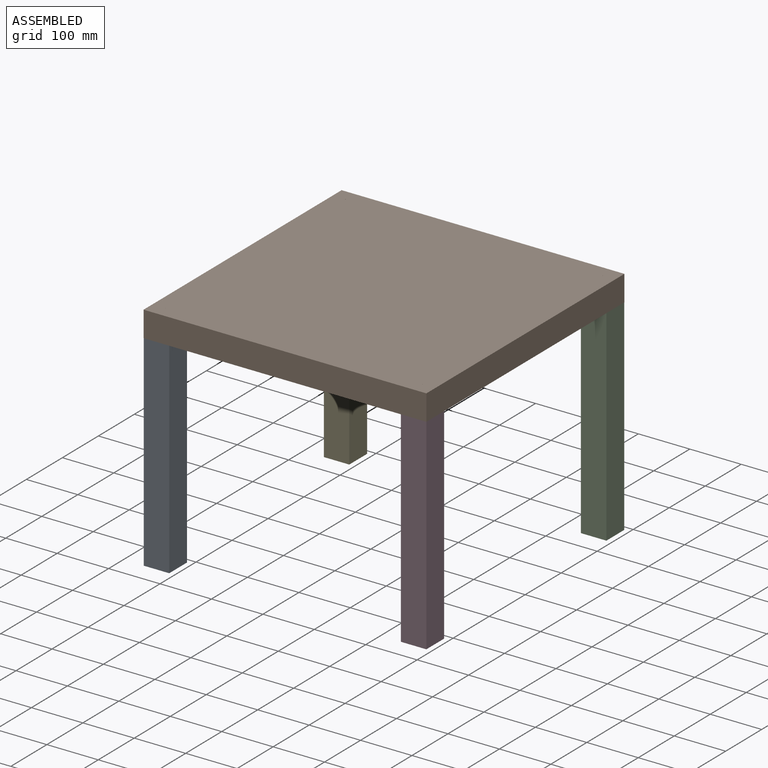
[diagram: assembled view]
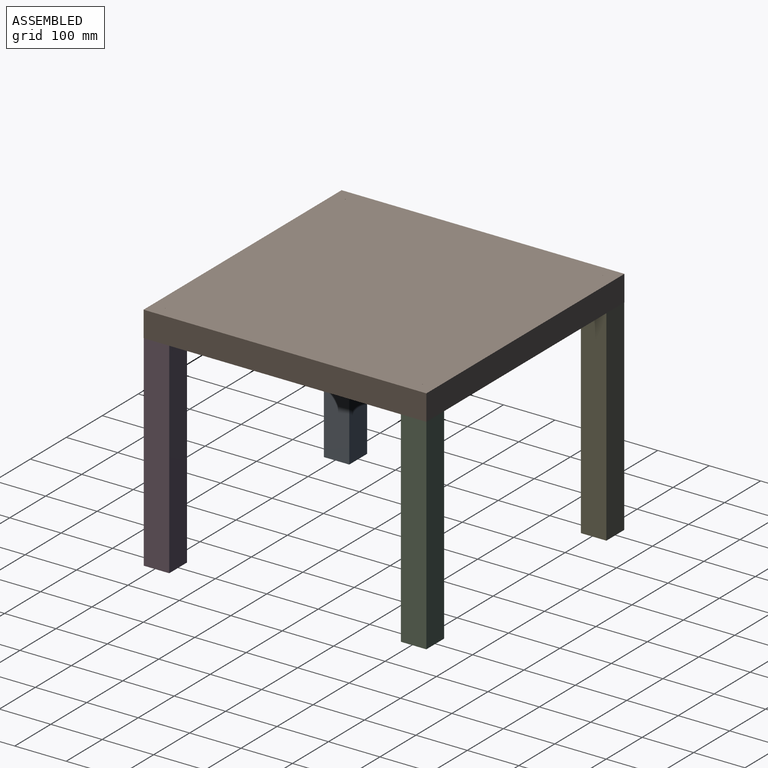
[diagram: assembled view, second angle]
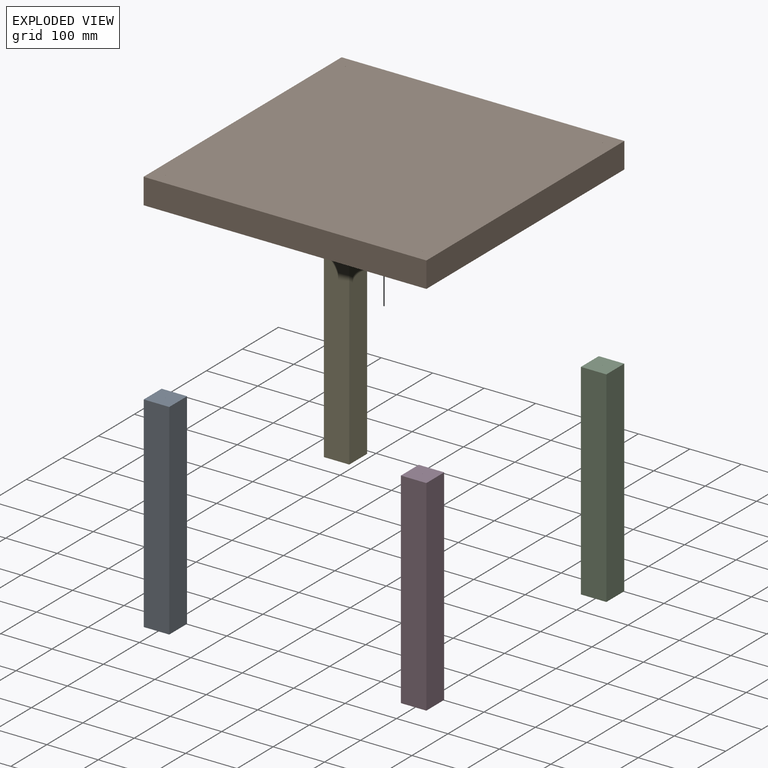
[diagram: exploded view]
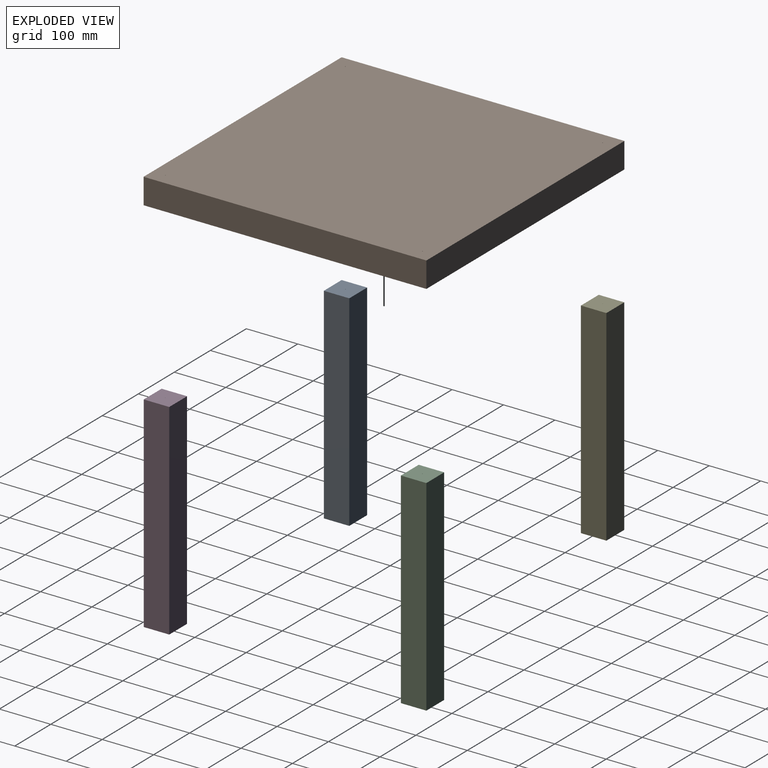
[diagram: exploded view, second angle]
ASSEMBLY  parts=5 mates=4
PART A: 7 faces, bbox 49.5x49.5x400 mm
  f0: plane 400x49.5mm, normal (0,1,0), area 19800mm2, adj f1,f4,f5,f6
  f1: plane 400x49.5mm, normal (-1,0,0), area 19800mm2, adj f0,f2,f5,f6
  f2: plane 400x49.5mm, normal (0,-1,0), area 19800mm2, adj f1,f4,f5,f6
  f3: cylinder r=0.5mm len=400mm, axis (0,0,-1), area 1256.6mm2, adj f5,f6
  f4: plane 400x49.5mm, normal (1,0,0), area 19800mm2, adj f0,f2,f5,f6
  f5: plane 49.5x49.5mm, normal (0,0,1), area 2449.5mm2, adj f0,f1,f2,f3,f4
  f6: plane 49.5x49.5mm, normal (0,0,-1), area 2449.5mm2, adj f0,f1,f2,f3,f4
PART B: 10 faces, bbox 550x550x50 mm
  f0: plane 550x50mm, normal (0,1,0), area 27500mm2, adj f1,f7,f8,f9
  f1: plane 550x50mm, normal (-1,0,0), area 27500mm2, adj f0,f2,f8,f9
  f2: plane 550x50mm, normal (0,-1,0), area 27500mm2, adj f1,f7,f8,f9
  f3: cylinder r=0.5mm len=50mm, axis (0,0,-1), area 157.1mm2, adj f8,f9
  f4: cylinder r=0.5mm len=50mm, axis (0,0,-1), area 157.1mm2, adj f8,f9
  f5: cylinder r=0.5mm len=50mm, axis (0,0,-1), area 157.1mm2, adj f8,f9
  f6: cylinder r=0.5mm len=50mm, axis (0,0,-1), area 157.1mm2, adj f8,f9
  f7: plane 550x50mm, normal (1,0,0), area 27500mm2, adj f0,f2,f8,f9
  f8: plane 550x550mm, normal (0,0,1), area 302496.9mm2, adj f0,f1,f2,f3,f4,f5,f6,f7
  f9: plane 550x550mm, normal (0,0,-1), area 302496.9mm2, adj f0,f1,f2,f3,f4,f5,f6,f7
PART C: same geometry as A
PART D: same geometry as A
PART E: same geometry as A
PLACE A rot(axis=(1,0,0),180deg) t=(-286.24,-847.4,-101.87)mm
PLACE B t=(-36.24,-597.4,-101.87)mm
PLACE C t=(213.76,-347.4,-501.87)mm
PLACE D t=(213.76,-847.4,-501.87)mm
PLACE E t=(-286.24,-347.4,-501.87)mm
MATE fastened A.f3 <-> B.f3  axis (0,0,1) through (-286.24,-847.4,-101.87)mm
MATE fastened D.f3 <-> B.f4  axis (0,0,1) through (213.76,-847.4,-101.87)mm
MATE fastened C.f3 <-> B.f5  axis (0,0,1) through (213.76,-347.4,-101.87)mm
MATE fastened B.f6 <-> E.f3  axis (0,0,-1) through (-286.24,-347.4,-101.87)mm
